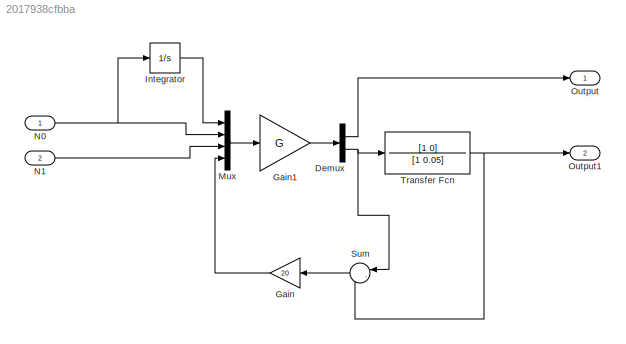
MODEL slx_2017938cfbba
KIND model
CONFIG AbsTol = auto
CONFIG EnableMultiTasking = off
CONFIG FixedStep = auto
CONFIG MaxStep = auto
CONFIG MinStep = auto
CONFIG RelTol = 1e-3
CONFIG SampleTimeConstraint = Unconstrained
CONFIG SolverName = VariableStepAuto
CONFIG StartTime = 0.0
CONFIG StopTime = 10.0
BLOCK [Demux] Demux
  Outputs = 2
  Ports = [1, 2]
BLOCK [Gain] Gain
  Gain = 20
BLOCK [Gain] Gain1
  Gain = G
  Multiplication = Matrix(K*u)
BLOCK [Integrator] Integrator
  Ports = [1, 1]
BLOCK [Mux] Mux
  DisplayOption = bar
  Ports = [4, 1]
BLOCK [Inport] N0
  IconDisplay = Port number and signal name
BLOCK [Inport] N1
  IconDisplay = Signal name
  Port = 2
BLOCK [Outport] Output
BLOCK [Outport] Output1
  Port = 2
BLOCK [Sum] Sum
  Inputs = |-+
  Ports = [2, 1]
BLOCK [TransferFcn] Transfer Fcn
  Denominator = [1 0.05]
  Numerator = [1 0]
LINE Demux:1 -> Output:1
NET Demux:2 -> Sum:1, Transfer Fcn:1
LINE Gain1:1 -> Demux:1
LINE Gain:1 -> Mux:4
LINE Integrator:1 -> Mux:1
LINE Mux:1 -> Gain1:1
NET N0:1 -> Integrator:1, Mux:2
LINE N1:1 -> Mux:3
LINE Sum:1 -> Gain:1
NET Transfer Fcn:1 -> Output1:1, Sum:2
note: NET lines group one-source signal fan-out (src -> all destinations, sorted); 1:1 wires keep LINE
